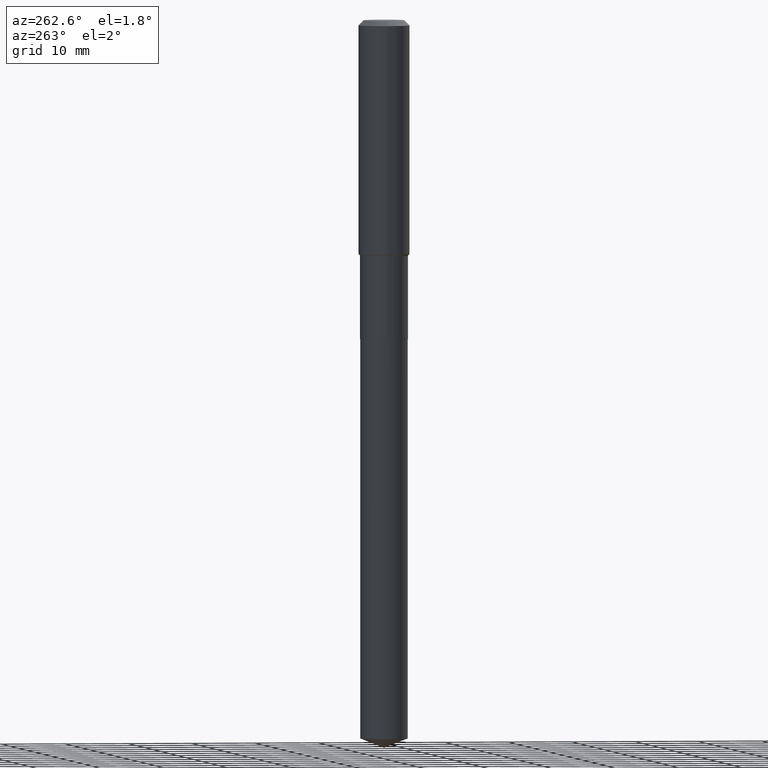
[diagram: clean part render]
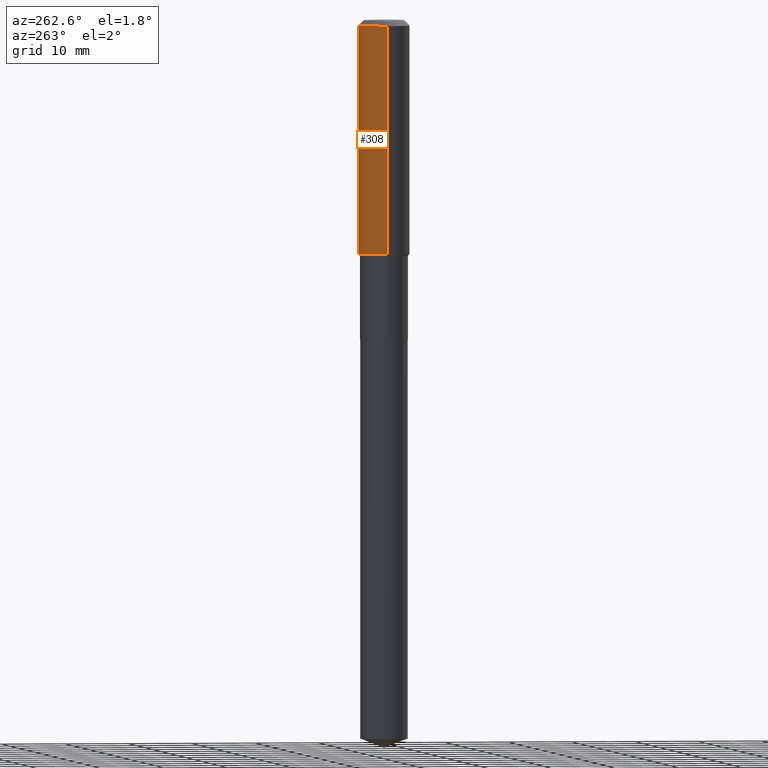
[diagram: same view with one face highlighted and labeled with its STEP entity id]
A machine part, auxiliary view. The second image highlights one B-rep face of the part: STEP entity #308.
In plain terms, the highlighted cylindrical surface (edge-blend (fillet) strip) has radius 4.0005 mm, axis along (-0, 0, 1).
Its self-contained STEP definition (entity closure, byte-faithful):
#11 = CIRCLE ( 'NONE', #145, 0.1575000000000000011 ) ;
#20 = CARTESIAN_POINT ( 'NONE',  ( 0.000000000000000000, 0.000000000000000000, 0.000000000000000000 ) ) ;
#21 = EDGE_LOOP ( 'NONE', ( #133, #483, #415, #67 ) ) ;
#47 = VECTOR ( 'NONE', #276, 39.37007874015748143 ) ;
#51 = DIRECTION ( 'NONE',  ( -2.445468806185136597E-29, 3.491481338843145583E-15, 1.000000000000000000 ) ) ;
#53 = FACE_OUTER_BOUND ( 'NONE', #21, .T. ) ;
#67 = ORIENTED_EDGE ( 'NONE', *, *, #115, .F. ) ;
#101 = CARTESIAN_POINT ( 'NONE',  ( 0.1575000000000001676, -6.134358138280462387E-15, -1.441949999999999843 ) ) ;
#114 = CYLINDRICAL_SURFACE ( 'NONE', #320, 0.1575000000000000844 ) ;
#115 = EDGE_CURVE ( 'NONE', #164, #486, #465, .T. ) ;
#116 = DIRECTION ( 'NONE',  ( -2.445468806185136597E-29, 3.491481338843145583E-15, 1.000000000000000000 ) ) ;
#124 = VERTEX_POINT ( 'NONE', #401 ) ;
#133 = ORIENTED_EDGE ( 'NONE', *, *, #411, .T. ) ;
#136 = CARTESIAN_POINT ( 'NONE',  ( 0.1575000000000000011, -1.209798283909146741E-15, -0.03150000000000019451 ) ) ;
#145 = AXIS2_PLACEMENT_3D ( 'NONE', #393, #116, #161 ) ;
#161 = DIRECTION ( 'NONE',  ( 1.000000000000000000, -6.982962677686265922E-15, 0.000000000000000000 ) ) ;
#164 = VERTEX_POINT ( 'NONE', #101 ) ;
#181 = VERTEX_POINT ( 'NONE', #366 ) ;
#205 = DIRECTION ( 'NONE',  ( -2.445468806185136597E-29, 3.491481338843145583E-15, 1.000000000000000000 ) ) ;
#242 = DIRECTION ( 'NONE',  ( -2.445468806185136877E-29, 3.491481338843145188E-15, 1.000000000000000000 ) ) ;
#252 = CARTESIAN_POINT ( 'NONE',  ( 3.526243745078657437E-29, -5.034541516544873329E-15, -1.441949999999999843 ) ) ;
#269 = EDGE_CURVE ( 'NONE', #486, #124, #11, .T. ) ;
#276 = DIRECTION ( 'NONE',  ( -2.445468806185136877E-29, 3.491481338843145188E-15, 1.000000000000000000 ) ) ;
#303 = EDGE_CURVE ( 'NONE', #181, #124, #350, .T. ) ;
#308 = ADVANCED_FACE ( 'NONE', ( #53 ), #114, .T. ) ;
#320 = AXIS2_PLACEMENT_3D ( 'NONE', #20, #51, #469 ) ;
#338 = CARTESIAN_POINT ( 'NONE',  ( 0.1575000000000000844, -1.099816621735587677E-15, 7.679978421878603638E-30 ) ) ;
#350 = LINE ( 'NONE', #468, #47 ) ;
#353 = DIRECTION ( 'NONE',  ( 1.000000000000000000, -6.982962677686267499E-15, 0.000000000000000000 ) ) ;
#366 = CARTESIAN_POINT ( 'NONE',  ( -0.1575000000000001676, -3.915436707722714937E-15, -1.441949999999999843 ) ) ;
#393 = CARTESIAN_POINT ( 'NONE',  ( 7.703226739483228723E-31, -1.099816621735597661E-16, -0.03150000000000019451 ) ) ;
#401 = CARTESIAN_POINT ( 'NONE',  ( -0.1575000000000000011, -1.453156780537057804E-15, -0.03150000000000019451 ) ) ;
#411 = EDGE_CURVE ( 'NONE', #164, #181, #418, .T. ) ;
#415 = ORIENTED_EDGE ( 'NONE', *, *, #269, .F. ) ;
#418 = CIRCLE ( 'NONE', #449, 0.1575000000000001676 ) ;
#436 = VECTOR ( 'NONE', #242, 39.37007874015748143 ) ;
#449 = AXIS2_PLACEMENT_3D ( 'NONE', #252, #205, #353 ) ;
#465 = LINE ( 'NONE', #338, #436 ) ;
#468 = CARTESIAN_POINT ( 'NONE',  ( -0.1575000000000000844, 1.119104808822158392E-15, -7.747322767151481189E-30 ) ) ;
#469 = DIRECTION ( 'NONE',  ( 1.000000000000000000, -6.982962677686267499E-15, 4.876176775795936353E-29 ) ) ;
#483 = ORIENTED_EDGE ( 'NONE', *, *, #303, .T. ) ;
#486 = VERTEX_POINT ( 'NONE', #136 ) ;